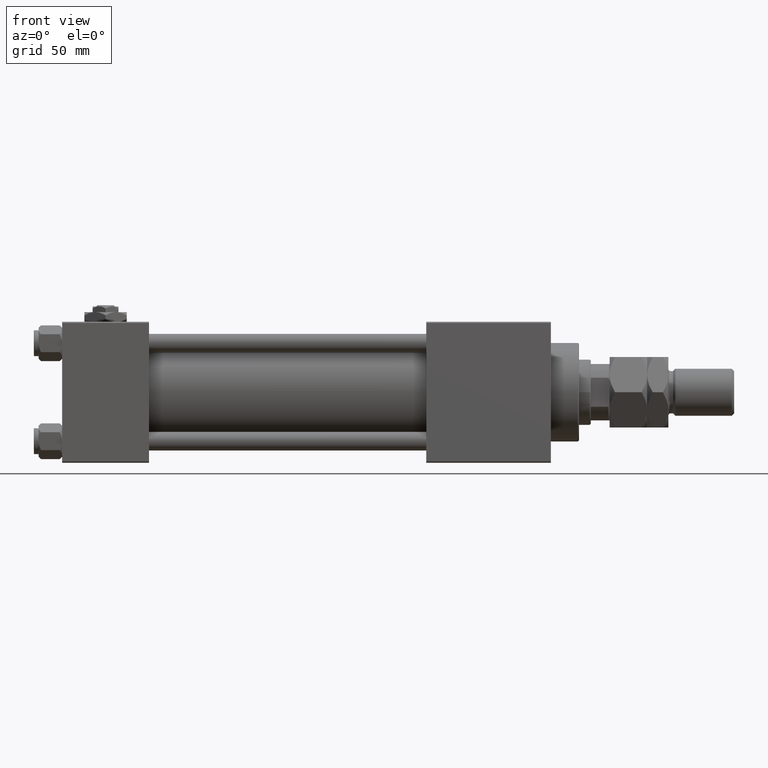
[diagram: clean part render]
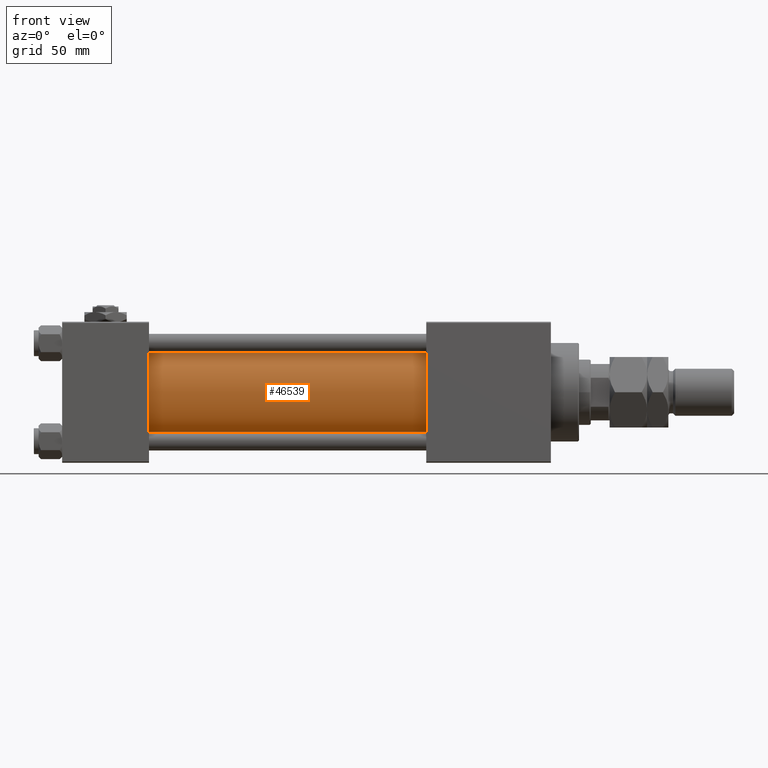
[diagram: same view with one face highlighted and labeled with its STEP entity id]
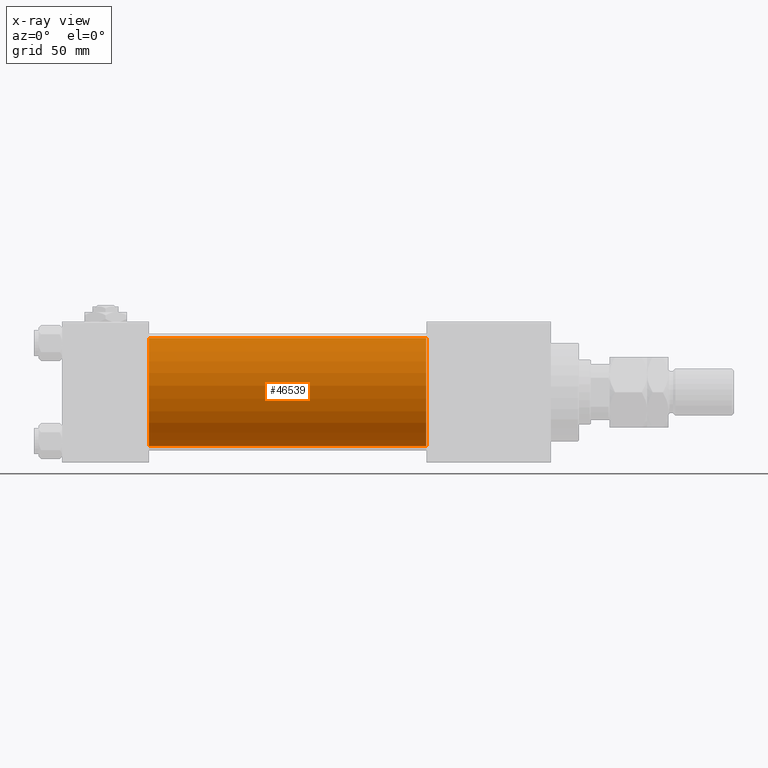
[diagram: x-ray of the same camera — body ghosted, the highlighted face saturated]
A machine part, front view. The second image highlights one B-rep face of the part: STEP entity #46539.
The next image is the same camera in x-ray: the body ghosted, the highlighted face saturated — about 0% of this face is hidden behind the body in this view.
In plain terms, the highlighted cylindrical surface (partial cylindrical patch) has radius 23 mm, axis along (-1, -0, -0).
Its self-contained STEP definition (entity closure, byte-faithful):
#66 = ORIENTED_EDGE ( 'NONE', *, *, #47673, .F. ) ;
#531 = DIRECTION ( 'NONE',  ( -1.000000000000000000, -0.000000000000000000, -0.000000000000000000 ) ) ;
#797 = DIRECTION ( 'NONE',  ( 0.000000000000000000, 0.000000000000000000, 1.000000000000000000 ) ) ;
#3950 = VERTEX_POINT ( 'NONE', #50810 ) ;
#4455 = CARTESIAN_POINT ( 'NONE',  ( 155.0000000000000000, -2.602085213965210642E-15, 23.00000000000000000 ) ) ;
#4628 = LINE ( 'NONE', #41901, #37079 ) ;
#5802 = DIRECTION ( 'NONE',  ( -1.000000000000000000, -0.000000000000000000, -0.000000000000000000 ) ) ;
#5890 = VECTOR ( 'NONE', #5802, 1000.000000000000000 ) ;
#10768 = CARTESIAN_POINT ( 'NONE',  ( 155.0000000000000000, -2.602085213965210642E-15, 0.000000000000000000 ) ) ;
#11645 = EDGE_CURVE ( 'NONE', #50173, #3950, #22376, .T. ) ;
#14443 = VERTEX_POINT ( 'NONE', #33823 ) ;
#15125 = ORIENTED_EDGE ( 'NONE', *, *, #11645, .T. ) ;
#16092 = EDGE_LOOP ( 'NONE', ( #25518, #66, #15125, #18558 ) ) ;
#18558 = ORIENTED_EDGE ( 'NONE', *, *, #36331, .T. ) ;
#19846 = CARTESIAN_POINT ( 'NONE',  ( 37.00000000000000711, -2.602085213965210642E-15, 0.000000000000000000 ) ) ;
#22164 = VERTEX_POINT ( 'NONE', #23657 ) ;
#22376 = LINE ( 'NONE', #47974, #5890 ) ;
#23657 = CARTESIAN_POINT ( 'NONE',  ( 155.0000000000000000, 2.146024240737016609E-16, -23.00000000000000000 ) ) ;
#25403 = CIRCLE ( 'NONE', #53224, 23.00000000000000000 ) ;
#25518 = ORIENTED_EDGE ( 'NONE', *, *, #29076, .F. ) ;
#29076 = EDGE_CURVE ( 'NONE', #22164, #14443, #4628, .T. ) ;
#29575 = CIRCLE ( 'NONE', #31340, 23.00000000000000000 ) ;
#31340 = AXIS2_PLACEMENT_3D ( 'NONE', #10768, #52927, #52122 ) ;
#33722 = CYLINDRICAL_SURFACE ( 'NONE', #38233, 23.00000000000000000 ) ;
#33823 = CARTESIAN_POINT ( 'NONE',  ( 37.00000000000000711, 2.146024240737016609E-16, -23.00000000000000000 ) ) ;
#35647 = DIRECTION ( 'NONE',  ( 1.000000000000000000, -0.000000000000000000, 0.000000000000000000 ) ) ;
#36331 = EDGE_CURVE ( 'NONE', #3950, #14443, #25403, .T. ) ;
#37079 = VECTOR ( 'NONE', #531, 1000.000000000000000 ) ;
#38233 = AXIS2_PLACEMENT_3D ( 'NONE', #50601, #50329, #797 ) ;
#41901 = CARTESIAN_POINT ( 'NONE',  ( 155.0000000000000000, 2.146024240737016609E-16, -23.00000000000000000 ) ) ;
#42715 = FACE_OUTER_BOUND ( 'NONE', #16092, .T. ) ;
#46539 = ADVANCED_FACE ( 'NONE', ( #42715 ), #33722, .T. ) ;
#47673 = EDGE_CURVE ( 'NONE', #50173, #22164, #29575, .T. ) ;
#47974 = CARTESIAN_POINT ( 'NONE',  ( 155.0000000000000000, -2.602085213965210642E-15, 23.00000000000000000 ) ) ;
#48457 = DIRECTION ( 'NONE',  ( 0.000000000000000000, 0.000000000000000000, 1.000000000000000000 ) ) ;
#50173 = VERTEX_POINT ( 'NONE', #4455 ) ;
#50329 = DIRECTION ( 'NONE',  ( -1.000000000000000000, -0.000000000000000000, -0.000000000000000000 ) ) ;
#50601 = CARTESIAN_POINT ( 'NONE',  ( 155.0000000000000000, -2.602085213965210642E-15, 0.000000000000000000 ) ) ;
#50810 = CARTESIAN_POINT ( 'NONE',  ( 37.00000000000000711, -2.602085213965210642E-15, 23.00000000000000000 ) ) ;
#52122 = DIRECTION ( 'NONE',  ( 0.000000000000000000, 0.000000000000000000, -1.000000000000000000 ) ) ;
#52927 = DIRECTION ( 'NONE',  ( 1.000000000000000000, 0.000000000000000000, 0.000000000000000000 ) ) ;
#53224 = AXIS2_PLACEMENT_3D ( 'NONE', #19846, #35647, #48457 ) ;